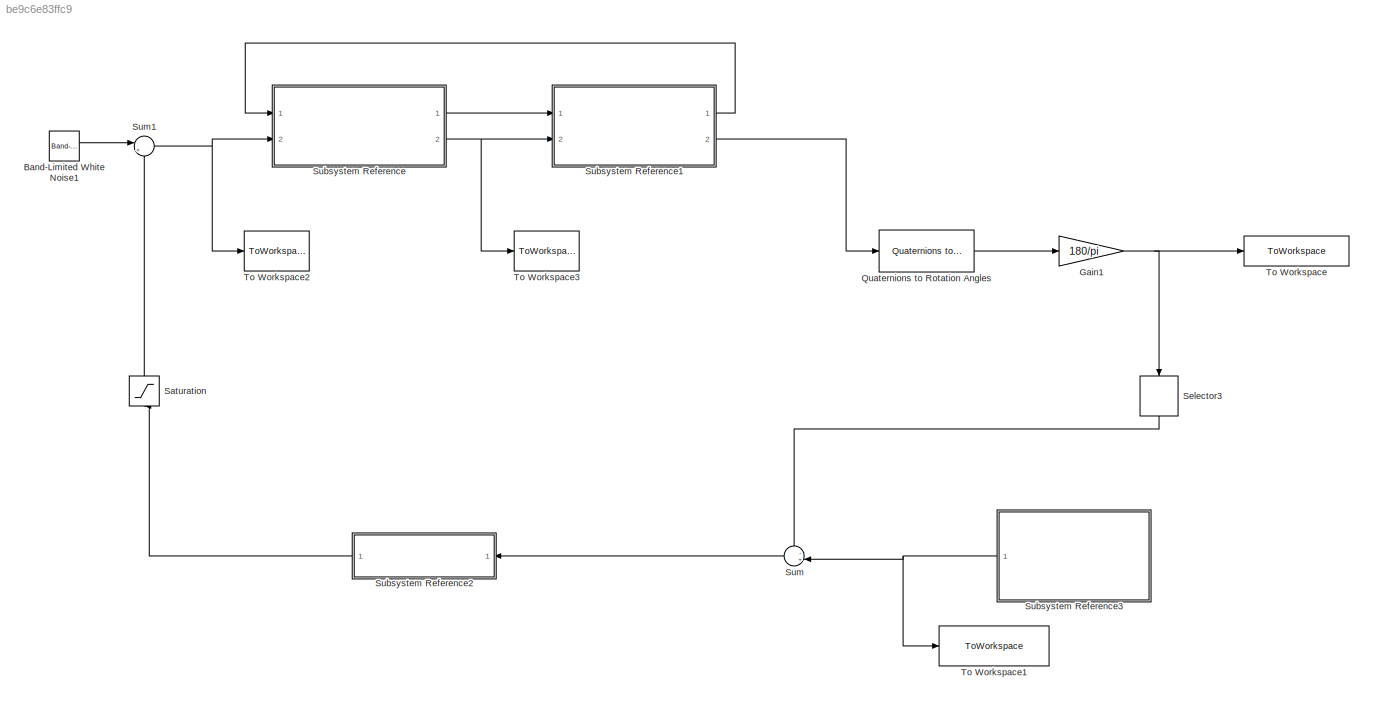
MODEL slx_be9c6e83ffc9
KIND model
CONFIG AbsTol = auto
CONFIG EnableMultiTasking = off
CONFIG FixedStep = auto
CONFIG MaxStep = auto
CONFIG MinStep = auto
CONFIG RelTol = 1e-3
CONFIG SampleTimeConstraint = Unconstrained
CONFIG SolverName = VariableStepAuto
CONFIG StartTime = 0.0
CONFIG StopTime = 200
BLOCK [Reference] Band-Limited White Noise1  REF=simulink/Sources/Band-Limited
White Noise
  Ports = [0, 1]
  SourceBlock = simulink/Sources/Band-Limited\nWhite Noise
  SourceProductBaseCode = SL
  SourceType = Band-Limited White Noise.
BLOCK [Gain] Gain1
  Gain = 180/pi
BLOCK [Reference] Quaternions to Rotation Angles  REF=sharedtransform/Quaternions to Rotation Angles
  AttributesFormatString = Rotation Order: %<rotationOrder>
  Ports = [1, 1]
  SourceBlock = sharedtransform/Quaternions to Rotation Angles
  SourceProductBaseCode = AE,PW,DR,MT,UV,VE
  SourceType = Quat2Ang
BLOCK [Saturate] Saturation
  LowerLimit = -Tmax
  NameLocation = right
  UpperLimit = Tmax
BLOCK [Selector] Selector3
  IndexOptions = Index vector (dialog)
  Indices = [3 2 1]
  InputPortWidth = 3
  NameLocation = left
  OutputSizes = 1
  Ports = [1, 1]
BLOCK [SubSystem] Subsystem Reference
  Ports = [2, 2]
  ReferencedSubsystem = Dynamics
  RequestExecContextInheritance = off
BLOCK [SubSystem] Subsystem Reference1
  Ports = [2, 2]
  ReferencedSubsystem = Kinematics
  RequestExecContextInheritance = off
BLOCK [SubSystem] Subsystem Reference2
  NameLocation = top
  Ports = [1, 1]
  ReferencedSubsystem = PID
  RequestExecContextInheritance = off
BLOCK [SubSystem] Subsystem Reference3
  NameLocation = top
  Ports = [0, 1]
  ReferencedSubsystem = ThreeAxesSignals
  RequestExecContextInheritance = off
BLOCK [Sum] Sum
  Inputs = -+|
  NameLocation = top
  Ports = [2, 1]
BLOCK [Sum] Sum1
  Inputs = |++
  Ports = [2, 1]
BLOCK [ToWorkspace] To Workspace
  FixptAsFi = on
  MaxDataPoints = inf
  Ports = [1]
  SampleTime = -1
  SaveFormat = Timeseries
  VariableName = euler_angles
BLOCK [ToWorkspace] To Workspace1
  FixptAsFi = on
  MaxDataPoints = inf
  Ports = [1]
  SampleTime = -1
  SaveFormat = Timeseries
  VariableName = euler_angles_ramp
BLOCK [ToWorkspace] To Workspace2
  FixptAsFi = on
  MaxDataPoints = inf
  Ports = [1]
  SampleTime = -1
  SaveFormat = Timeseries
  VariableName = torque
BLOCK [ToWorkspace] To Workspace3
  FixptAsFi = on
  MaxDataPoints = inf
  Ports = [1]
  SampleTime = -1
  SaveFormat = Timeseries
  VariableName = omega
LINE Band-Limited White Noise1:1 -> Sum1:1
NET Gain1:1 -> Selector3:1, To Workspace:1
LINE Quaternions to Rotation Angles:1 -> Gain1:1
LINE Saturation:1 -> Sum1:2
LINE Selector3:1 -> Sum:1
LINE Subsystem Reference1:1 -> Subsystem Reference:1
LINE Subsystem Reference1:2 -> Quaternions to Rotation Angles:1
LINE Subsystem Reference2:1 -> Saturation:1
NET Subsystem Reference3:1 -> Sum:2, To Workspace1:1
LINE Subsystem Reference:1 -> Subsystem Reference1:1
NET Subsystem Reference:2 -> Subsystem Reference1:2, To Workspace3:1
NET Sum1:1 -> Subsystem Reference:2, To Workspace2:1
LINE Sum:1 -> Subsystem Reference2:1
note: NET lines group one-source signal fan-out (src -> all destinations, sorted); 1:1 wires keep LINE
